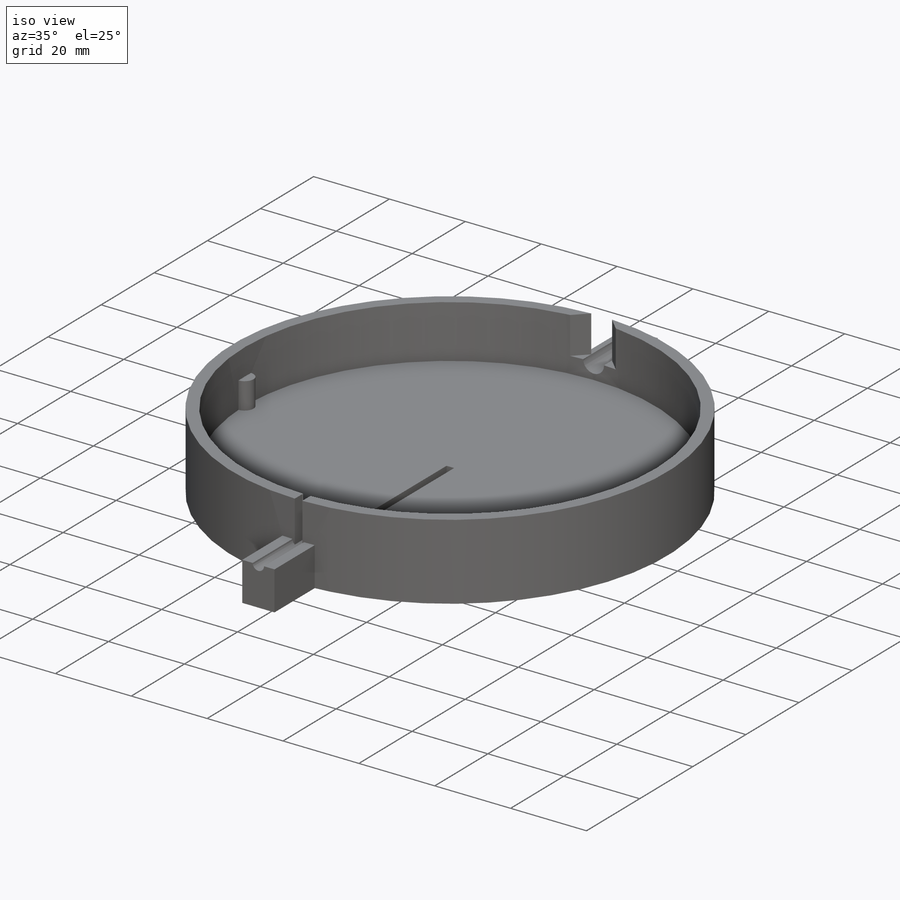
[diagram: iso view]
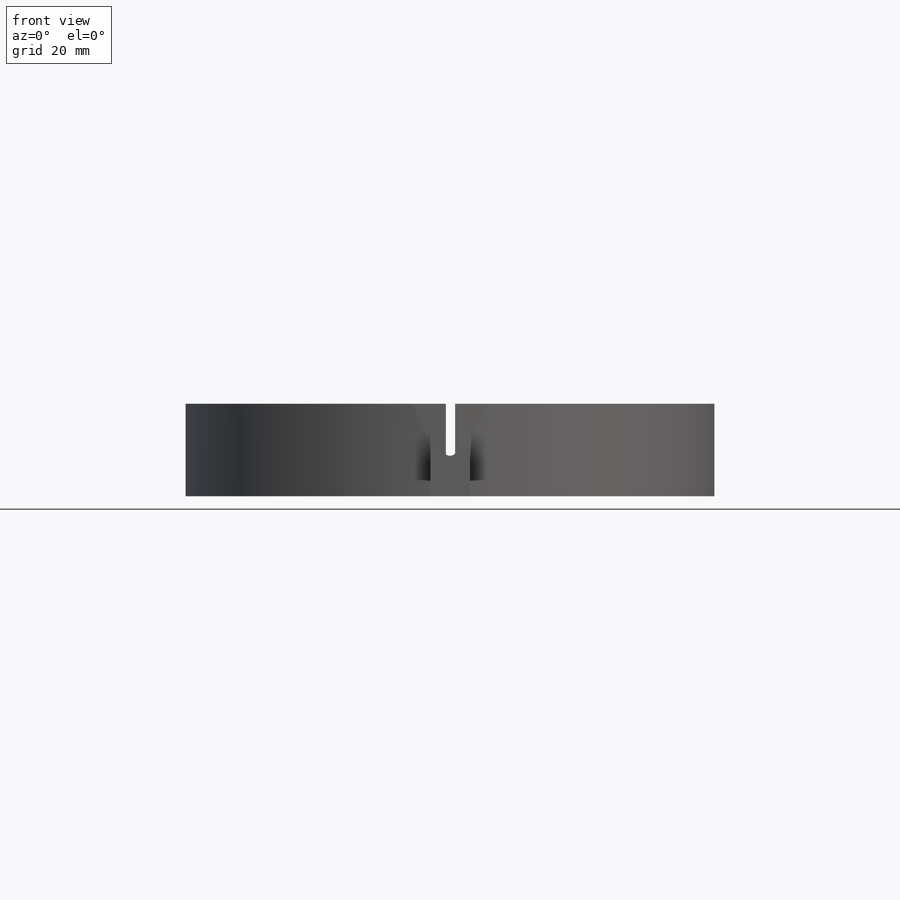
[diagram: front view]
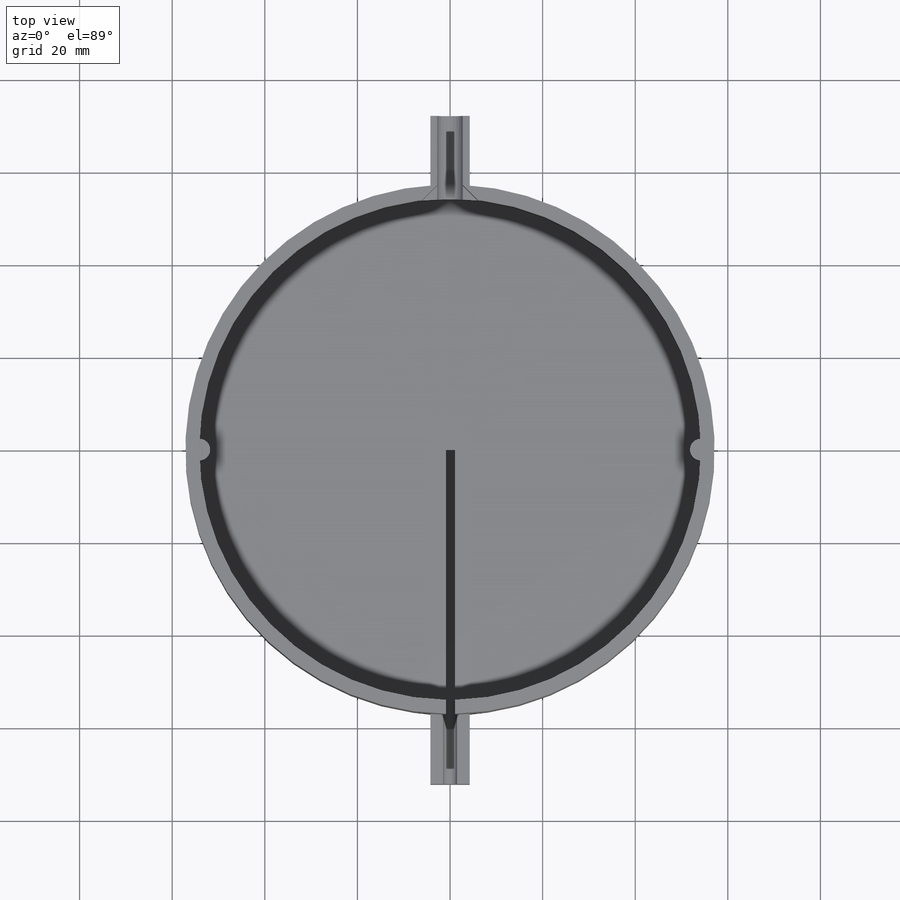
[diagram: top view]
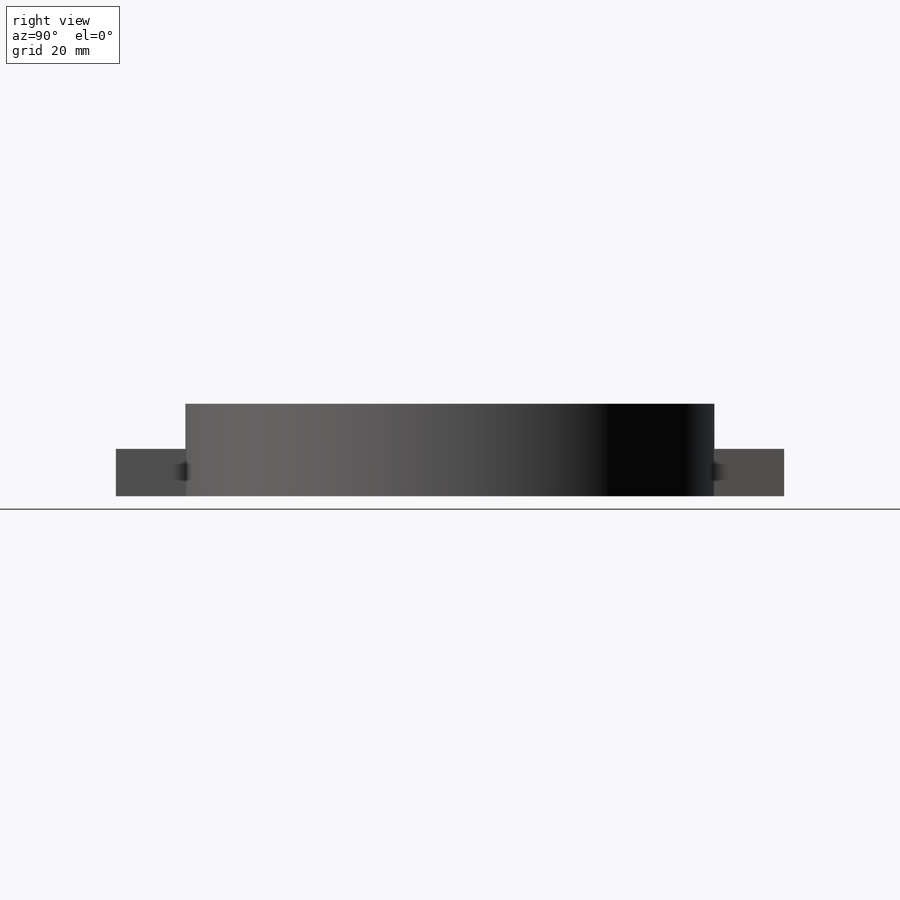
[diagram: right view]
SOLIDWORKS PART (.sldprt)
format: sldprt  version: not decoded by parser v0  size: 262,144 bytes
history: native  units: mm
features: sketch x8, extrude x4, cut_extrude x4, plane x2, material x1 (+12 scaffold rows collapsed)
feature tree (31):
  scaffold x12  (default folders/planes/origin — collapsed)
  material  "Material <not specified>"
  sketch  "Sketch1"  dims[D1=114.3mm]
  extrude  "Boss-Extrude1"  Depth=20mm
  sketch  "Sketch2"  dims[c1.D1=~53.34426mm c1.D2=62.12mm c2.D1=3.0mm]
  cut_extrude  "Cut-Extrude1"  Depth=14mm
  sketch  "Sketch3"  dims[D1=4.7mm D2=4.7mm]
  extrude  "Boss-Extrude2"  Depth=7mm
  sketch  "Sketch4"  dims[D1=~4.771421mm D2=4.25mm D3=3.75mm]
  cut_extrude  "Cut-Extrude2"  [1 undecoded]
  sketch  "Sketch5"  dims[c1.D1=~2.599229mm c1.D2=~2.178882mm c2.D1=2.0mm c2.D2=2.0mm c2.D3=5.0mm]
  cut_extrude  "Cut-Extrude3"  [1 undecoded]
  plane  "Plane1"
  sketch  "Sketch6"  dims[D1=1.5mm D2=1.5mm]
  extrude  "Boss-Extrude3"  Depth=18mm
  plane  "Plane2"
  sketch  "Sketch7"  dims[D2=3.0mm D1=0.0mm]
  extrude  "Boss-Extrude4"  Depth=18mm
  sketch  "Sketch8"  dims[c1.D1=~3.214076mm c2.D1=45.0deg c2.D2=~3.214076mm c3.D2=45.0deg]
  cut_extrude  "Cut-Extrude4"  [1 undecoded]
decode coverage: 13 of 16 modeling features carry decoded parameters
note: ~ marks probable driven/reference dimensions
note: 3 parameter values undecoded
summary: no parameter record found for 3 features
note: suppression state not decoded; provenance and decode notes live in map.json
